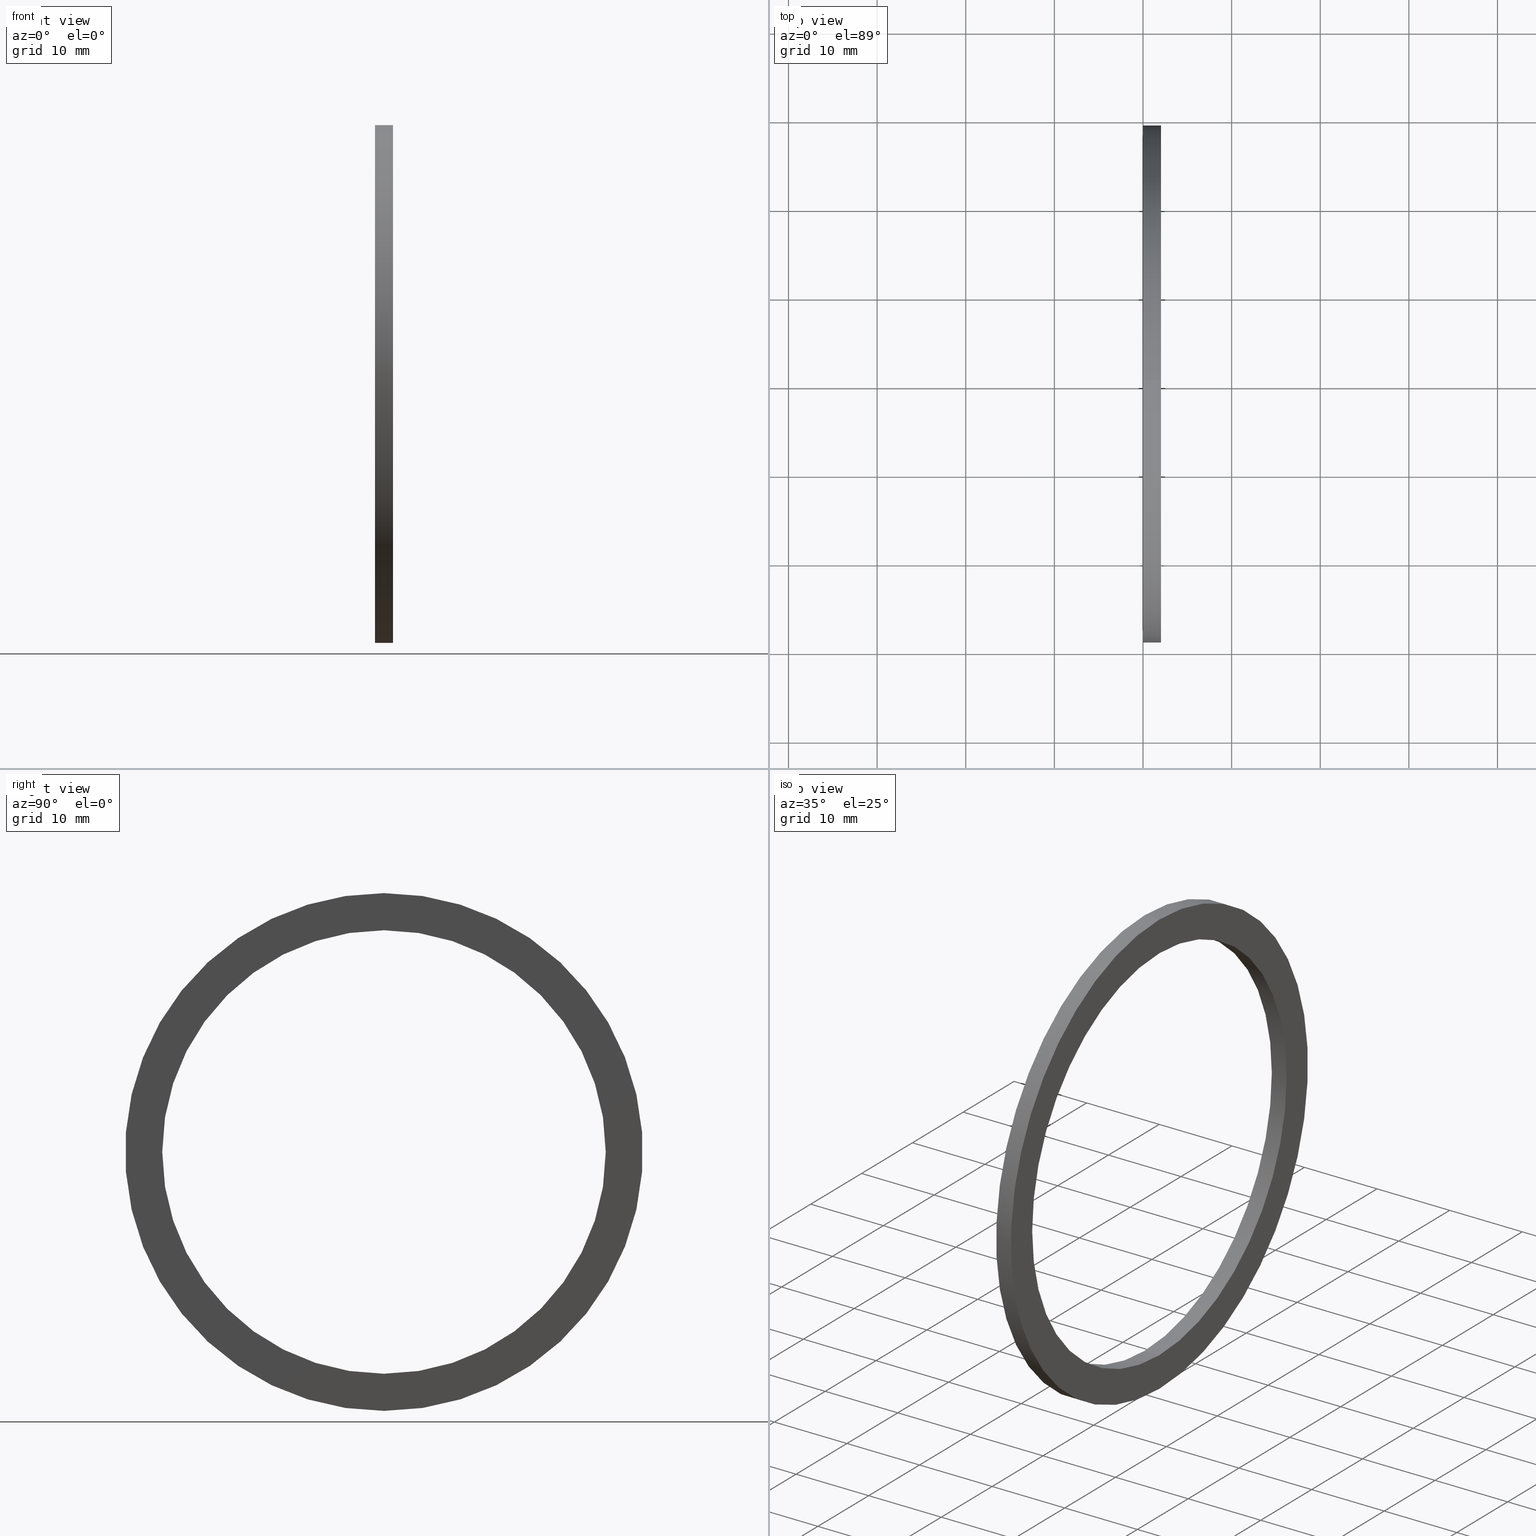
[diagram: canonical four-view strip — front | top / right | iso, engineering-drawing reading convention]
A machine part, canonical four-view strip (front | top / right | iso — engineering-drawing reading convention). The complete STEP part file that produces these views, byte-faithful:
ISO-10303-21;
HEADER;
FILE_DESCRIPTION (( 'STEP AP203' ),
    '1' );
FILE_NAME ('SM-50-VT.STEP',
    '2008-06-25T06:11:40',
    ( 'BSI05' ),
    ( 'BAYSTATE' ),
    'SwSTEP 2.0',
    'SolidWorks 2007',
    '' );
FILE_SCHEMA (( 'CONFIG_CONTROL_DESIGN' ));
ENDSEC;

DATA;
#1 = EDGE_CURVE ( 'NONE', #37, #36, #59, .T. ) ;
#2 = ORIENTED_EDGE ( 'NONE', *, *, #24, .T. ) ;
#3 = ORIENTED_EDGE ( 'NONE', *, *, #8, .F. ) ;
#4 = VERTEX_POINT ( 'NONE', #60 ) ;
#5 = ORIENTED_EDGE ( 'NONE', *, *, #80, .T. ) ;
#6 = ORIENTED_EDGE ( 'NONE', *, *, #10, .T. ) ;
#7 = ORIENTED_EDGE ( 'NONE', *, *, #8, .T. ) ;
#8 = EDGE_CURVE ( 'NONE', #40, #43, #78, .T. ) ;
#9 = ORIENTED_EDGE ( 'NONE', *, *, #10, .F. ) ;
#10 = EDGE_CURVE ( 'NONE', #17, #47, #104, .T. ) ;
#11 = ORIENTED_EDGE ( 'NONE', *, *, #63, .F. ) ;
#12 = CLOSED_SHELL ( 'NONE', ( #27, #58, #53, #28, #18, #21 ) ) ;
#13 = EDGE_CURVE ( 'NONE', #44, #4, #100, .T. ) ;
#14 = ORIENTED_EDGE ( 'NONE', *, *, #48, .T. ) ;
#15 = EDGE_LOOP ( 'NONE', ( #19, #20 ) ) ;
#16 = ORIENTED_EDGE ( 'NONE', *, *, #63, .T. ) ;
#17 = VERTEX_POINT ( 'NONE', #96 ) ;
#18 = ADVANCED_FACE ( 'NONE', ( #95, #94 ), #93, .T. ) ;
#19 = ORIENTED_EDGE ( 'NONE', *, *, #35, .F. ) ;
#20 = ORIENTED_EDGE ( 'NONE', *, *, #1, .F. ) ;
#21 = ADVANCED_FACE ( 'NONE', ( #92 ), #86, .F. ) ;
#22 = EDGE_LOOP ( 'NONE', ( #32, #52, #5, #6 ) ) ;
#23 = ORIENTED_EDGE ( 'NONE', *, *, #24, .F. ) ;
#24 = EDGE_CURVE ( 'NONE', #36, #43, #76, .T. ) ;
#25 = EDGE_LOOP ( 'NONE', ( #26, #45, #16, #61 ) ) ;
#26 = ORIENTED_EDGE ( 'NONE', *, *, #48, .F. ) ;
#27 = ADVANCED_FACE ( 'NONE', ( #72 ), #71, .F. ) ;
#28 = ADVANCED_FACE ( 'NONE', ( #70 ), #64, .T. ) ;
#29 = EDGE_LOOP ( 'NONE', ( #30, #31, #2, #3 ) ) ;
#30 = ORIENTED_EDGE ( 'NONE', *, *, #39, .F. ) ;
#31 = ORIENTED_EDGE ( 'NONE', *, *, #1, .T. ) ;
#32 = ORIENTED_EDGE ( 'NONE', *, *, #46, .F. ) ;
#33 = EDGE_LOOP ( 'NONE', ( #34, #38, #41, #23 ) ) ;
#34 = ORIENTED_EDGE ( 'NONE', *, *, #35, .T. ) ;
#35 = EDGE_CURVE ( 'NONE', #36, #37, #190, .T. ) ;
#36 = VERTEX_POINT ( 'NONE', #227 ) ;
#37 = VERTEX_POINT ( 'NONE', #226 ) ;
#38 = ORIENTED_EDGE ( 'NONE', *, *, #39, .T. ) ;
#39 = EDGE_CURVE ( 'NONE', #37, #40, #225, .T. ) ;
#40 = VERTEX_POINT ( 'NONE', #206 ) ;
#41 = ORIENTED_EDGE ( 'NONE', *, *, #42, .F. ) ;
#42 = EDGE_CURVE ( 'NONE', #43, #40, #252, .T. ) ;
#43 = VERTEX_POINT ( 'NONE', #145 ) ;
#44 = VERTEX_POINT ( 'NONE', #144 ) ;
#45 = ORIENTED_EDGE ( 'NONE', *, *, #46, .T. ) ;
#46 = EDGE_CURVE ( 'NONE', #4, #47, #113, .T. ) ;
#47 = VERTEX_POINT ( 'NONE', #109 ) ;
#48 = EDGE_CURVE ( 'NONE', #4, #44, #180, .T. ) ;
#49 = EDGE_LOOP ( 'NONE', ( #50, #14 ) ) ;
#50 = ORIENTED_EDGE ( 'NONE', *, *, #13, .T. ) ;
#51 = MANIFOLD_SOLID_BREP ( 'NONE', #12 ) ;
#52 = ORIENTED_EDGE ( 'NONE', *, *, #13, .F. ) ;
#53 = ADVANCED_FACE ( 'NONE', ( #181, #175 ), #223, .T. ) ;
#54 = EDGE_LOOP ( 'NONE', ( #55, #7 ) ) ;
#55 = ORIENTED_EDGE ( 'NONE', *, *, #42, .T. ) ;
#56 = EDGE_LOOP ( 'NONE', ( #9, #11 ) ) ;
#57 = AXIS2_PLACEMENT_3D ( 'NONE', #62, #82, #81 ) ;
#58 = ADVANCED_FACE ( 'NONE', ( #224 ), #188, .T. ) ;
#59 = CIRCLE ( 'NONE', #57, 1.149999999999999900 ) ;
#60 = CARTESIAN_POINT ( 'NONE',  ( 0.07999999999999996000, 1.206277097160143100E-016, -0.9849999999999999900 ) ) ;
#61 = ORIENTED_EDGE ( 'NONE', *, *, #80, .F. ) ;
#62 = CARTESIAN_POINT ( 'NONE',  ( 0.07999999999999996000, 0.0000000000000000000, 0.0000000000000000000 ) ) ;
#63 = EDGE_CURVE ( 'NONE', #47, #17, #217, .T. ) ;
#64 = CYLINDRICAL_SURFACE ( 'NONE', #65, 1.149999999999999900 ) ;
#65 = AXIS2_PLACEMENT_3D ( 'NONE', #143, #182, #205 ) ;
#66 = DIRECTION ( 'NONE',  ( 0.0000000000000000000, 0.0000000000000000000, 1.000000000000000000 ) ) ;
#67 = DIRECTION ( 'NONE',  ( -1.000000000000000000, 0.0000000000000000000, 0.0000000000000000000 ) ) ;
#68 = CARTESIAN_POINT ( 'NONE',  ( -1.721125226614714300, 0.0000000000000000000, 0.0000000000000000000 ) ) ;
#69 = AXIS2_PLACEMENT_3D ( 'NONE', #68, #67, #66 ) ;
#70 = FACE_OUTER_BOUND ( 'NONE', #29, .T. ) ;
#71 = CYLINDRICAL_SURFACE ( 'NONE', #69, 0.9849999999999999900 ) ;
#72 = FACE_OUTER_BOUND ( 'NONE', #25, .T. ) ;
#73 = DIRECTION ( 'NONE',  ( -1.000000000000000000, 0.0000000000000000000, 0.0000000000000000000 ) ) ;
#74 = VECTOR ( 'NONE', #73, 39.37007874015748100 ) ;
#75 = CARTESIAN_POINT ( 'NONE',  ( -1.721125226614714300, 0.0000000000000000000, 1.149999999999999900 ) ) ;
#76 = LINE ( 'NONE', #75, #74 ) ;
#77 = AXIS2_PLACEMENT_3D ( 'NONE', #108, #107, #106 ) ;
#78 = CIRCLE ( 'NONE', #77, 1.149999999999999900 ) ;
#79 = CARTESIAN_POINT ( 'NONE',  ( 0.0000000000000000000, 0.0000000000000000000, 0.0000000000000000000 ) ) ;
#80 = EDGE_CURVE ( 'NONE', #44, #17, #218, .T. ) ;
#81 = DIRECTION ( 'NONE',  ( 0.0000000000000000000, 0.0000000000000000000, 1.000000000000000000 ) ) ;
#82 = DIRECTION ( 'NONE',  ( -1.000000000000000000, 0.0000000000000000000, 0.0000000000000000000 ) ) ;
#83 = DIRECTION ( 'NONE',  ( 0.0000000000000000000, 0.0000000000000000000, 1.000000000000000000 ) ) ;
#84 = DIRECTION ( 'NONE',  ( -1.000000000000000000, 0.0000000000000000000, 0.0000000000000000000 ) ) ;
#85 = AXIS2_PLACEMENT_3D ( 'NONE', #87, #84, #83 ) ;
#86 = CYLINDRICAL_SURFACE ( 'NONE', #85, 0.9849999999999999900 ) ;
#87 = CARTESIAN_POINT ( 'NONE',  ( -1.721125226614714300, 0.0000000000000000000, 0.0000000000000000000 ) ) ;
#88 = DIRECTION ( 'NONE',  ( 0.0000000000000000000, 0.0000000000000000000, -1.000000000000000000 ) ) ;
#89 = DIRECTION ( 'NONE',  ( 1.000000000000000000, 0.0000000000000000000, 0.0000000000000000000 ) ) ;
#90 = CARTESIAN_POINT ( 'NONE',  ( 0.08000000000000001600, -0.9849999999999999900, 0.0000000000000000000 ) ) ;
#91 = AXIS2_PLACEMENT_3D ( 'NONE', #90, #89, #88 ) ;
#92 = FACE_OUTER_BOUND ( 'NONE', #22, .T. ) ;
#93 = PLANE ( 'NONE',  #91 ) ;
#94 = FACE_OUTER_BOUND ( 'NONE', #15, .T. ) ;
#95 = FACE_BOUND ( 'NONE', #49, .T. ) ;
#96 = CARTESIAN_POINT ( 'NONE',  ( 0.0000000000000000000, 0.0000000000000000000, 0.9849999999999999900 ) ) ;
#97 = DIRECTION ( 'NONE',  ( 0.0000000000000000000, 0.0000000000000000000, 1.000000000000000000 ) ) ;
#98 = DIRECTION ( 'NONE',  ( -1.000000000000000000, 0.0000000000000000000, 0.0000000000000000000 ) ) ;
#99 = AXIS2_PLACEMENT_3D ( 'NONE', #105, #98, #97 ) ;
#100 = CIRCLE ( 'NONE', #99, 0.9849999999999999900 ) ;
#101 = DIRECTION ( 'NONE',  ( 0.0000000000000000000, 0.0000000000000000000, 1.000000000000000000 ) ) ;
#102 = DIRECTION ( 'NONE',  ( -1.000000000000000000, 0.0000000000000000000, 0.0000000000000000000 ) ) ;
#103 = AXIS2_PLACEMENT_3D ( 'NONE', #79, #102, #101 ) ;
#104 = CIRCLE ( 'NONE', #103, 0.9849999999999999900 ) ;
#105 = CARTESIAN_POINT ( 'NONE',  ( 0.07999999999999996000, 0.0000000000000000000, 0.0000000000000000000 ) ) ;
#106 = DIRECTION ( 'NONE',  ( 0.0000000000000000000, 0.0000000000000000000, 1.000000000000000000 ) ) ;
#107 = DIRECTION ( 'NONE',  ( -1.000000000000000000, 0.0000000000000000000, 0.0000000000000000000 ) ) ;
#108 = CARTESIAN_POINT ( 'NONE',  ( 0.0000000000000000000, 0.0000000000000000000, 0.0000000000000000000 ) ) ;
#109 = CARTESIAN_POINT ( 'NONE',  ( 0.0000000000000000000, 1.206277097160143100E-016, -0.9849999999999999900 ) ) ;
#110 = DIRECTION ( 'NONE',  ( -1.000000000000000000, 0.0000000000000000000, 0.0000000000000000000 ) ) ;
#111 = VECTOR ( 'NONE', #110, 39.37007874015748100 ) ;
#112 = CARTESIAN_POINT ( 'NONE',  ( -1.721125226614714300, 1.206277097160143100E-016, -0.9849999999999999900 ) ) ;
#113 = LINE ( 'NONE', #112, #111 ) ;
#114 = DIRECTION ( 'NONE',  ( 1.000000000000000000, 0.0000000000000000000, 0.0000000000000000000 ) ) ;
#115 = DIRECTION ( 'NONE',  ( 0.0000000000000000000, 0.0000000000000000000, 1.000000000000000000 ) ) ;
#116 = CARTESIAN_POINT ( 'NONE',  ( 0.0000000000000000000, 0.0000000000000000000, 0.0000000000000000000 ) ) ;
#117 = PERSON_AND_ORGANIZATION ( #137, #136 ) ;
#118 = CC_DESIGN_APPROVAL ( #126, ( #129 ) ) ;
#119 = APPROVAL_DATE_TIME ( #120, #126 ) ;
#120 = DATE_AND_TIME ( #121, #122 ) ;
#121 = CALENDAR_DATE ( 2008, 25, 6 ) ;
#122 = LOCAL_TIME ( 11, 41, 40.00000000000000000, #123 ) ;
#123 = COORDINATED_UNIVERSAL_TIME_OFFSET ( 5, 30, .AHEAD. ) ;
#124 = APPROVAL_PERSON_ORGANIZATION ( #128, #126, #125 ) ;
#125 = APPROVAL_ROLE ( '' ) ;
#126 = APPROVAL ( #127, 'UNSPECIFIED' ) ;
#127 = APPROVAL_STATUS ( 'not_yet_approved' ) ;
#128 = PERSON_AND_ORGANIZATION ( #137, #136 ) ;
#129 = PRODUCT_DEFINITION ( 'UNKNOWN', '', #161, #130 ) ;
#130 = DESIGN_CONTEXT ( 'detailed design', #132, 'design' ) ;
#131 = APPLICATION_PROTOCOL_DEFINITION ( 'international standard', 'config_control_design', 1994, #132 ) ;
#132 = APPLICATION_CONTEXT ( 'configuration controlled 3d designs of mechanical parts and assemblies' ) ;
#133 = CC_DESIGN_PERSON_AND_ORGANIZATION_ASSIGNMENT ( #135, #134, ( #138 ) ) ;
#134 = PERSON_AND_ORGANIZATION_ROLE ( 'design_owner' ) ;
#135 = PERSON_AND_ORGANIZATION ( #137, #136 ) ;
#136 = ORGANIZATION ( 'UNSPECIFIED', 'UNSPECIFIED', '' ) ;
#137 = PERSON ( 'UNSPECIFIED', 'UNSPECIFIED', 'UNSPECIFIED', ('UNSPECIFIED'), ('UNSPECIFIED'), ('UNSPECIFIED') ) ;
#138 = PRODUCT ( 'SM-50-VT', 'SM-50-VT', '', ( #139 ) ) ;
#139 = MECHANICAL_CONTEXT ( 'NONE', #141, 'mechanical' ) ;
#140 = APPLICATION_PROTOCOL_DEFINITION ( 'international standard', 'config_control_design', 1994, #141 ) ;
#141 = APPLICATION_CONTEXT ( 'configuration controlled 3d designs of mechanical parts and assemblies' ) ;
#142 = PRODUCT_DEFINITION_SHAPE ( 'NONE', 'NONE',  #129 ) ;
#143 = CARTESIAN_POINT ( 'NONE',  ( -1.721125226614714300, 0.0000000000000000000, 0.0000000000000000000 ) ) ;
#144 = CARTESIAN_POINT ( 'NONE',  ( 0.07999999999999996000, 0.0000000000000000000, 0.9849999999999999900 ) ) ;
#145 = CARTESIAN_POINT ( 'NONE',  ( 0.0000000000000000000, 0.0000000000000000000, 1.149999999999999900 ) ) ;
#146 = DIRECTION ( 'NONE',  ( 0.0000000000000000000, 0.0000000000000000000, 1.000000000000000000 ) ) ;
#147 = CC_DESIGN_PERSON_AND_ORGANIZATION_ASSIGNMENT ( #149, #148, ( #161 ) ) ;
#148 = PERSON_AND_ORGANIZATION_ROLE ( 'creator' ) ;
#149 = PERSON_AND_ORGANIZATION ( #137, #136 ) ;
#150 = CC_DESIGN_APPROVAL ( #158, ( #161 ) ) ;
#151 = APPROVAL_DATE_TIME ( #152, #158 ) ;
#152 = DATE_AND_TIME ( #153, #154 ) ;
#153 = CALENDAR_DATE ( 2008, 25, 6 ) ;
#154 = LOCAL_TIME ( 11, 41, 40.00000000000000000, #155 ) ;
#155 = COORDINATED_UNIVERSAL_TIME_OFFSET ( 5, 30, .AHEAD. ) ;
#156 = APPROVAL_PERSON_ORGANIZATION ( #160, #158, #157 ) ;
#157 = APPROVAL_ROLE ( '' ) ;
#158 = APPROVAL ( #159, 'UNSPECIFIED' ) ;
#159 = APPROVAL_STATUS ( 'not_yet_approved' ) ;
#160 = PERSON_AND_ORGANIZATION ( #137, #136 ) ;
#161 = PRODUCT_DEFINITION_FORMATION_WITH_SPECIFIED_SOURCE ( 'ANY', '', #138, .NOT_KNOWN. ) ;
#162 = CC_DESIGN_DATE_AND_TIME_ASSIGNMENT ( #164, #163, ( #129 ) ) ;
#163 = DATE_TIME_ROLE ( 'creation_date' ) ;
#164 = DATE_AND_TIME ( #165, #166 ) ;
#165 = CALENDAR_DATE ( 2008, 25, 6 ) ;
#166 = LOCAL_TIME ( 11, 41, 40.00000000000000000, #167 ) ;
#167 = COORDINATED_UNIVERSAL_TIME_OFFSET ( 5, 30, .AHEAD. ) ;
#168 = CC_DESIGN_PERSON_AND_ORGANIZATION_ASSIGNMENT ( #117, #169, ( #129 ) ) ;
#169 = PERSON_AND_ORGANIZATION_ROLE ( 'creator' ) ;
#170 = AXIS2_PLACEMENT_3D ( 'NONE', #116, #115, #114 ) ;
#171 = SHAPE_DEFINITION_REPRESENTATION ( #142, #172 ) ;
#172 = ADVANCED_BREP_SHAPE_REPRESENTATION ( 'SM-50-VT', ( #51, #170 ), #173 ) ;
#173 =( GEOMETRIC_REPRESENTATION_CONTEXT ( 3 ) GLOBAL_UNCERTAINTY_ASSIGNED_CONTEXT ( ( #174 ) ) GLOBAL_UNIT_ASSIGNED_CONTEXT ( ( #202, #201, #200 ) ) REPRESENTATION_CONTEXT ( 'NONE', 'WORKASPACE' ) );
#174 = UNCERTAINTY_MEASURE_WITH_UNIT (LENGTH_MEASURE( 1.000000000000000100E-005 ), #202, 'distance_accuracy_value', 'NONE');
#175 = FACE_BOUND ( 'NONE', #56, .T. ) ;
#176 = DIRECTION ( 'NONE',  ( 0.0000000000000000000, 0.0000000000000000000, 1.000000000000000000 ) ) ;
#177 = DIRECTION ( 'NONE',  ( -1.000000000000000000, 0.0000000000000000000, 0.0000000000000000000 ) ) ;
#178 = CARTESIAN_POINT ( 'NONE',  ( 0.07999999999999996000, 0.0000000000000000000, 0.0000000000000000000 ) ) ;
#179 = AXIS2_PLACEMENT_3D ( 'NONE', #178, #177, #176 ) ;
#180 = CIRCLE ( 'NONE', #179, 0.9849999999999999900 ) ;
#181 = FACE_OUTER_BOUND ( 'NONE', #54, .T. ) ;
#182 = DIRECTION ( 'NONE',  ( -1.000000000000000000, 0.0000000000000000000, 0.0000000000000000000 ) ) ;
#183 = CARTESIAN_POINT ( 'NONE',  ( 0.0000000000000000000, 0.0000000000000000000, 0.0000000000000000000 ) ) ;
#184 = DIRECTION ( 'NONE',  ( 0.0000000000000000000, 0.0000000000000000000, 1.000000000000000000 ) ) ;
#185 = DIRECTION ( 'NONE',  ( -1.000000000000000000, 0.0000000000000000000, 0.0000000000000000000 ) ) ;
#186 = CARTESIAN_POINT ( 'NONE',  ( -1.721125226614714300, 0.0000000000000000000, 0.0000000000000000000 ) ) ;
#187 = AXIS2_PLACEMENT_3D ( 'NONE', #186, #185, #184 ) ;
#188 = CYLINDRICAL_SURFACE ( 'NONE', #187, 1.149999999999999900 ) ;
#189 = AXIS2_PLACEMENT_3D ( 'NONE', #230, #229, #228 ) ;
#190 = CIRCLE ( 'NONE', #189, 1.149999999999999900 ) ;
#191 = PRODUCT_RELATED_PRODUCT_CATEGORY ( 'detail', '', ( #138 ) ) ;
#192 = CC_DESIGN_SECURITY_CLASSIFICATION ( #244, ( #161 ) ) ;
#193 = CC_DESIGN_APPROVAL ( #232, ( #244 ) ) ;
#194 = APPROVAL_DATE_TIME ( #195, #232 ) ;
#195 = DATE_AND_TIME ( #196, #197 ) ;
#196 = CALENDAR_DATE ( 2008, 25, 6 ) ;
#197 = LOCAL_TIME ( 11, 41, 40.00000000000000000, #198 ) ;
#198 = COORDINATED_UNIVERSAL_TIME_OFFSET ( 5, 30, .AHEAD. ) ;
#199 = APPROVAL_PERSON_ORGANIZATION ( #234, #232, #231 ) ;
#200 =( NAMED_UNIT ( * ) SI_UNIT ( $, .STERADIAN. ) SOLID_ANGLE_UNIT ( ) );
#201 =( NAMED_UNIT ( * ) PLANE_ANGLE_UNIT ( ) SI_UNIT ( $, .RADIAN. ) );
#202 =( CONVERSION_BASED_UNIT ( 'INCH', #203 ) LENGTH_UNIT ( ) NAMED_UNIT ( #204 ) );
#203 = LENGTH_MEASURE_WITH_UNIT ( LENGTH_MEASURE( 0.02539999999999999900 ), #210 );
#204 = DIMENSIONAL_EXPONENTS ( 1.000000000000000000, 0.0000000000000000000, 0.0000000000000000000, 0.0000000000000000000, 0.0000000000000000000, 0.0000000000000000000, 0.0000000000000000000 ) ;
#205 = DIRECTION ( 'NONE',  ( 0.0000000000000000000, 0.0000000000000000000, 1.000000000000000000 ) ) ;
#206 = CARTESIAN_POINT ( 'NONE',  ( 0.0000000000000000000, 1.408343819019456000E-016, -1.149999999999999900 ) ) ;
#207 = DIRECTION ( 'NONE',  ( -1.000000000000000000, 0.0000000000000000000, 0.0000000000000000000 ) ) ;
#208 = VECTOR ( 'NONE', #207, 39.37007874015748100 ) ;
#209 = CARTESIAN_POINT ( 'NONE',  ( -1.721125226614714300, 1.408343819019456000E-016, -1.149999999999999900 ) ) ;
#210 =( LENGTH_UNIT ( ) NAMED_UNIT ( * ) SI_UNIT ( $, .METRE. ) );
#211 = DIRECTION ( 'NONE',  ( -1.000000000000000000, 0.0000000000000000000, 0.0000000000000000000 ) ) ;
#212 = VECTOR ( 'NONE', #211, 39.37007874015748100 ) ;
#213 = CARTESIAN_POINT ( 'NONE',  ( -1.721125226614714300, 0.0000000000000000000, 0.9849999999999999900 ) ) ;
#214 = DIRECTION ( 'NONE',  ( 0.0000000000000000000, 0.0000000000000000000, 1.000000000000000000 ) ) ;
#215 = DIRECTION ( 'NONE',  ( -1.000000000000000000, 0.0000000000000000000, 0.0000000000000000000 ) ) ;
#216 = AXIS2_PLACEMENT_3D ( 'NONE', #183, #215, #214 ) ;
#217 = CIRCLE ( 'NONE', #216, 0.9849999999999999900 ) ;
#218 = LINE ( 'NONE', #213, #212 ) ;
#219 = DIRECTION ( 'NONE',  ( 0.0000000000000000000, 0.0000000000000000000, 1.000000000000000000 ) ) ;
#220 = DIRECTION ( 'NONE',  ( -1.000000000000000000, 0.0000000000000000000, 0.0000000000000000000 ) ) ;
#221 = CARTESIAN_POINT ( 'NONE',  ( 1.745064054196885600E-017, -0.9849999999999999900, 0.0000000000000000000 ) ) ;
#222 = AXIS2_PLACEMENT_3D ( 'NONE', #221, #220, #219 ) ;
#223 = PLANE ( 'NONE',  #222 ) ;
#224 = FACE_OUTER_BOUND ( 'NONE', #33, .T. ) ;
#225 = LINE ( 'NONE', #209, #208 ) ;
#226 = CARTESIAN_POINT ( 'NONE',  ( 0.07999999999999996000, 1.408343819019456000E-016, -1.149999999999999900 ) ) ;
#227 = CARTESIAN_POINT ( 'NONE',  ( 0.07999999999999996000, 0.0000000000000000000, 1.149999999999999900 ) ) ;
#228 = DIRECTION ( 'NONE',  ( 0.0000000000000000000, 0.0000000000000000000, 1.000000000000000000 ) ) ;
#229 = DIRECTION ( 'NONE',  ( -1.000000000000000000, 0.0000000000000000000, 0.0000000000000000000 ) ) ;
#230 = CARTESIAN_POINT ( 'NONE',  ( 0.07999999999999996000, 0.0000000000000000000, 0.0000000000000000000 ) ) ;
#231 = APPROVAL_ROLE ( '' ) ;
#232 = APPROVAL ( #233, 'UNSPECIFIED' ) ;
#233 = APPROVAL_STATUS ( 'not_yet_approved' ) ;
#234 = PERSON_AND_ORGANIZATION ( #137, #136 ) ;
#235 = CC_DESIGN_DATE_AND_TIME_ASSIGNMENT ( #237, #236, ( #244 ) ) ;
#236 = DATE_TIME_ROLE ( 'classification_date' ) ;
#237 = DATE_AND_TIME ( #238, #239 ) ;
#238 = CALENDAR_DATE ( 2008, 25, 6 ) ;
#239 = LOCAL_TIME ( 11, 41, 40.00000000000000000, #240 ) ;
#240 = COORDINATED_UNIVERSAL_TIME_OFFSET ( 5, 30, .AHEAD. ) ;
#241 = CC_DESIGN_PERSON_AND_ORGANIZATION_ASSIGNMENT ( #243, #242, ( #244 ) ) ;
#242 = PERSON_AND_ORGANIZATION_ROLE ( 'classification_officer' ) ;
#243 = PERSON_AND_ORGANIZATION ( #137, #136 ) ;
#244 = SECURITY_CLASSIFICATION ( '', '', #245 ) ;
#245 = SECURITY_CLASSIFICATION_LEVEL ( 'unclassified' ) ;
#246 = CC_DESIGN_PERSON_AND_ORGANIZATION_ASSIGNMENT ( #248, #247, ( #161 ) ) ;
#247 = PERSON_AND_ORGANIZATION_ROLE ( 'design_supplier' ) ;
#248 = PERSON_AND_ORGANIZATION ( #137, #136 ) ;
#249 = DIRECTION ( 'NONE',  ( -1.000000000000000000, 0.0000000000000000000, 0.0000000000000000000 ) ) ;
#250 = CARTESIAN_POINT ( 'NONE',  ( 0.0000000000000000000, 0.0000000000000000000, 0.0000000000000000000 ) ) ;
#251 = AXIS2_PLACEMENT_3D ( 'NONE', #250, #249, #146 ) ;
#252 = CIRCLE ( 'NONE', #251, 1.149999999999999900 ) ;
ENDSEC;
END-ISO-10303-21;
